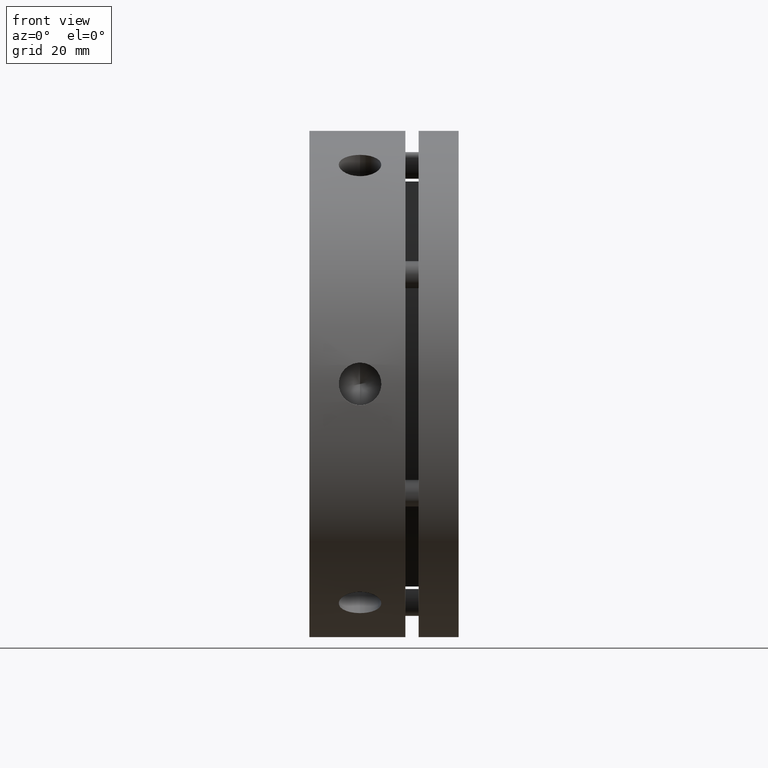
[diagram: clean part render]
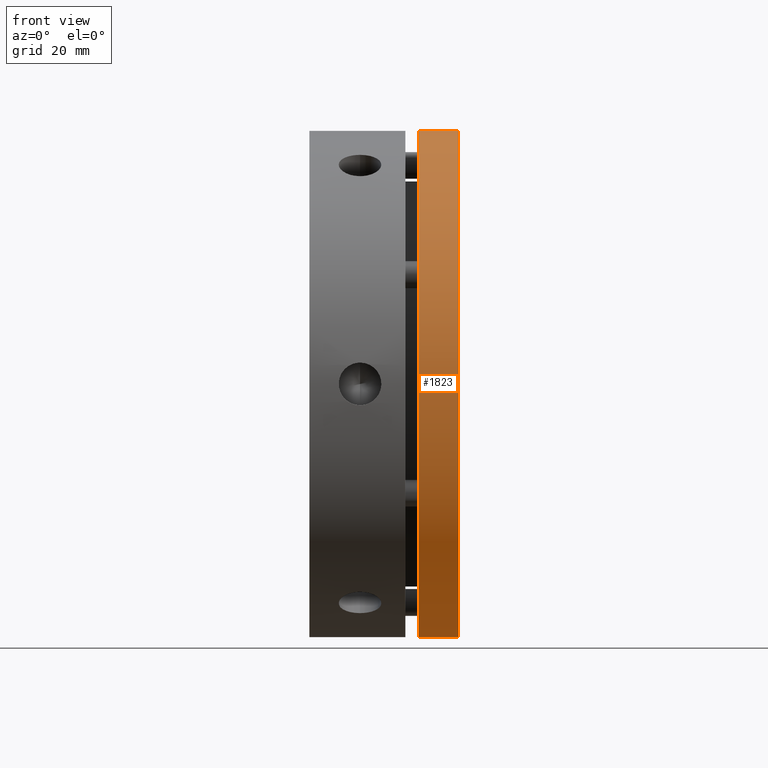
[diagram: same view with one face highlighted and labeled with its STEP entity id]
A machine part, front view. The second image highlights one B-rep face of the part: STEP entity #1823.
In plain terms, the highlighted cylindrical surface (partial cylindrical patch) has radius 47.5 mm, axis along (1, 0, 0).
Its self-contained STEP definition (entity closure, byte-faithful):
#233 = EDGE_LOOP ( 'NONE', ( #754, #766, #764, #769 ) ) ;
#362 = CIRCLE ( 'NONE', #3046, 47.50000000000000000 ) ;
#454 = EDGE_CURVE ( 'NONE', #1397, #1396, #362, .T. ) ;
#499 = AXIS2_PLACEMENT_3D ( 'NONE', #3363, #3361, #3359 ) ;
#754 = ORIENTED_EDGE ( 'NONE', *, *, #902, .F. ) ;
#764 = ORIENTED_EDGE ( 'NONE', *, *, #899, .T. ) ;
#766 = ORIENTED_EDGE ( 'NONE', *, *, #2984, .T. ) ;
#769 = ORIENTED_EDGE ( 'NONE', *, *, #454, .T. ) ;
#899 = EDGE_CURVE ( 'NONE', #1390, #1397, #2736, .T. ) ;
#902 = EDGE_CURVE ( 'NONE', #1393, #1396, #2740, .T. ) ;
#1390 = VERTEX_POINT ( 'NONE', #3215 ) ;
#1393 = VERTEX_POINT ( 'NONE', #3218 ) ;
#1396 = VERTEX_POINT ( 'NONE', #3221 ) ;
#1397 = VERTEX_POINT ( 'NONE', #3222 ) ;
#1823 = ADVANCED_FACE ( 'NONE', ( #2814 ), #2823, .T. ) ;
#2102 = CARTESIAN_POINT ( 'NONE',  ( 27.99999999999998900, 0.0000000000000000000, 0.0000000000000000000 ) ) ;
#2103 = DIRECTION ( 'NONE',  ( -1.000000000000000000, -0.0000000000000000000, -0.0000000000000000000 ) ) ;
#2104 = DIRECTION ( 'NONE',  ( 0.0000000000000000000, 0.0000000000000000000, -1.000000000000000000 ) ) ;
#2566 = CARTESIAN_POINT ( 'NONE',  ( 13.99999999999998800, 0.0000000000000000000, -47.50000000000000000 ) ) ;
#2567 = DIRECTION ( 'NONE',  ( 1.000000000000000000, 0.0000000000000000000, 0.0000000000000000000 ) ) ;
#2574 = DIRECTION ( 'NONE',  ( 1.000000000000000000, 0.0000000000000000000, 0.0000000000000000000 ) ) ;
#2575 = CARTESIAN_POINT ( 'NONE',  ( 13.99999999999998800, 5.817072295949928200E-015, 47.50000000000000000 ) ) ;
#2736 = LINE ( 'NONE', #2566, #2738 ) ;
#2738 = VECTOR ( 'NONE', #2567, 1000.000000000000000 ) ;
#2740 = LINE ( 'NONE', #2575, #2742 ) ;
#2742 = VECTOR ( 'NONE', #2574, 1000.000000000000000 ) ;
#2814 = FACE_OUTER_BOUND ( 'NONE', #233, .T. ) ;
#2823 = CYLINDRICAL_SURFACE ( 'NONE', #499, 47.50000000000000000 ) ;
#2984 = EDGE_CURVE ( 'NONE', #1393, #1390, #4258, .T. ) ;
#3046 = AXIS2_PLACEMENT_3D ( 'NONE', #2102, #2103, #2104 ) ;
#3215 = CARTESIAN_POINT ( 'NONE',  ( 20.49999999999999300, 0.0000000000000000000, -47.50000000000000000 ) ) ;
#3218 = CARTESIAN_POINT ( 'NONE',  ( 20.49999999999999300, 5.817072295949928200E-015, 47.50000000000000000 ) ) ;
#3221 = CARTESIAN_POINT ( 'NONE',  ( 27.99999999999998900, 5.817072295949928200E-015, 47.50000000000000000 ) ) ;
#3222 = CARTESIAN_POINT ( 'NONE',  ( 27.99999999999998900, 0.0000000000000000000, -47.50000000000000000 ) ) ;
#3359 = DIRECTION ( 'NONE',  ( 0.0000000000000000000, 0.0000000000000000000, -1.000000000000000000 ) ) ;
#3361 = DIRECTION ( 'NONE',  ( 1.000000000000000000, 0.0000000000000000000, 0.0000000000000000000 ) ) ;
#3363 = CARTESIAN_POINT ( 'NONE',  ( 13.99999999999998800, 0.0000000000000000000, 0.0000000000000000000 ) ) ;
#3749 = CARTESIAN_POINT ( 'NONE',  ( 20.49999999999999300, 0.0000000000000000000, 0.0000000000000000000 ) ) ;
#3750 = DIRECTION ( 'NONE',  ( 1.000000000000000000, 0.0000000000000000000, 0.0000000000000000000 ) ) ;
#3751 = DIRECTION ( 'NONE',  ( 0.0000000000000000000, 0.0000000000000000000, -1.000000000000000000 ) ) ;
#4258 = CIRCLE ( 'NONE', #4469, 47.50000000000000000 ) ;
#4469 = AXIS2_PLACEMENT_3D ( 'NONE', #3749, #3750, #3751 ) ;